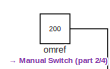
[diagram: root canvas - part 1/4, top left region]
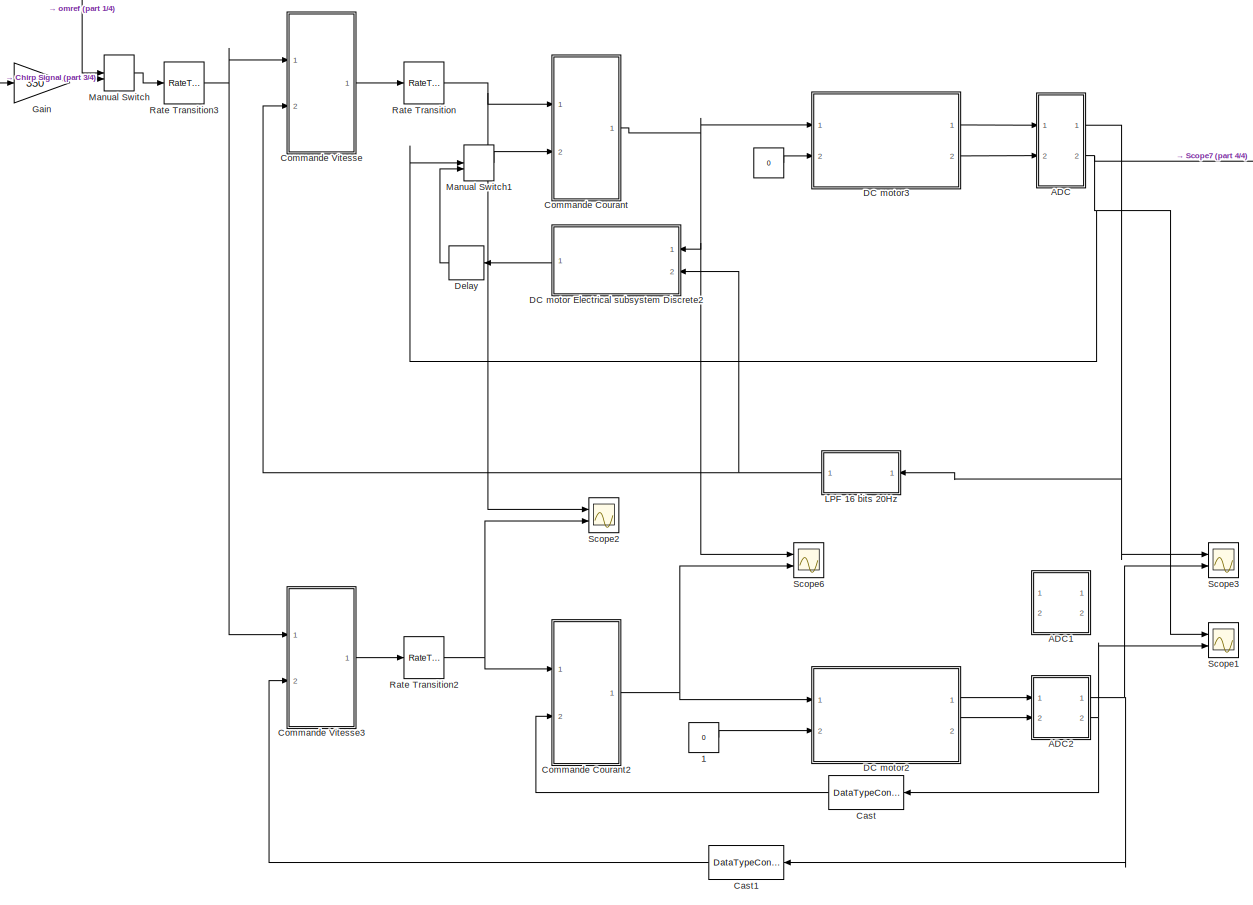
[diagram: root canvas - part 2/4, most of the canvas]
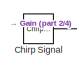
[diagram: root canvas - part 3/4, top left region]
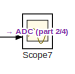
[diagram: root canvas - part 4/4, top right region]
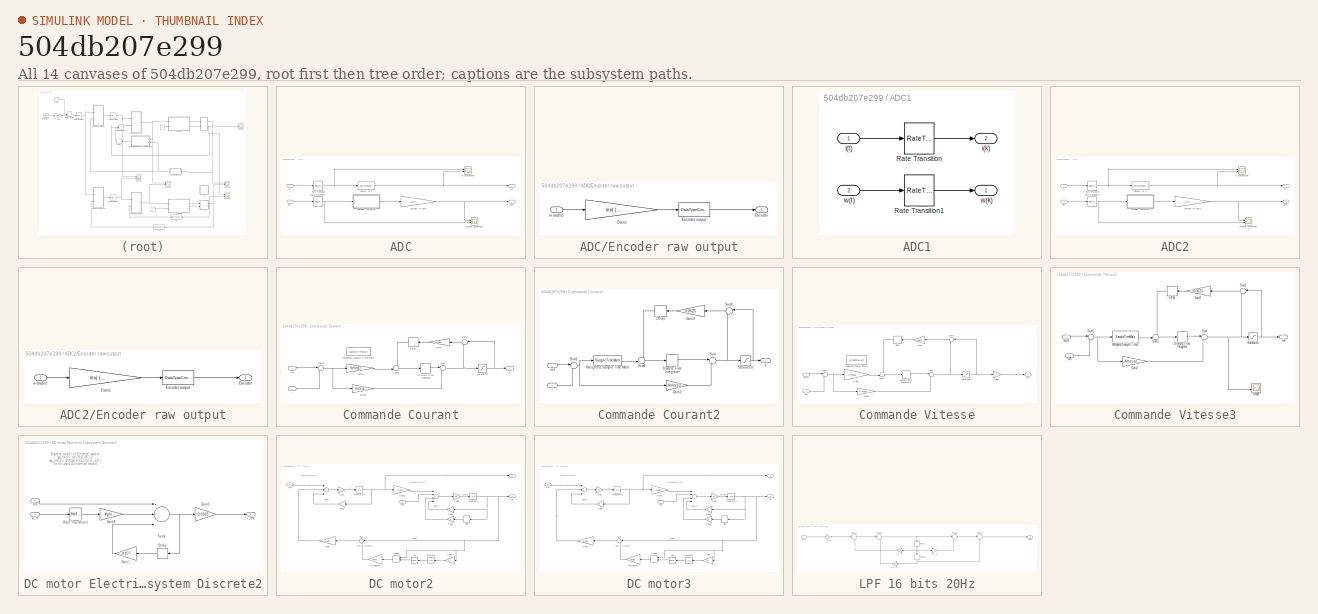
[diagram: thumbnail index - all 14 canvases of the model, root first then tree order]
MODEL slx_504db207e299
KIND model
CONFIG AbsTol = auto
CONFIG EnableMultiTasking = off
CONFIG FixedStep = auto
CONFIG MaxStep = 50e-6
CONFIG MinStep = auto
CONFIG PreLoadFcn = InitTPV0;
CONFIG RelTol = 1e-3
CONFIG SampleTimeConstraint = Unconstrained
CONFIG Solver = VariableStepAuto
CONFIG SolverName = VariableStepAuto
CONFIG StartTime = 0.0
CONFIG StopTime = 2
BLOCK [Constant]  
  OutDataTypeStr = Inherit: Inherit via back propagation
  Value = 0
BLOCK [Constant]  1
  Value = 0
BLOCK [SubSystem] ADC
  Ports = [2, 2]
  RequestExecContextInheritance = off
BLOCK [DataTypeConversion] ADC/Convert to A
  LockScale = on
  OutDataTypeStr = fixdt(1,16,4.4/32768,0)
  RndMeth = Floor
BLOCK [Scope] ADC/Encoder quantization
  Floating = off
  NumInputPorts = 2
  Ports = [2]
  ScopeSpecificationString = Simulink.scopes.TimeScopeBlockCfg('CurrentConfiguration', extmgr.ConfigurationSet(extmgr.Configuration('Core','General UI',true),extmgr.Configuration('Core','Source UI',true),extmgr.Configuration('Sources','WiredSimulink',true,'DataLoggingVariableName','ScopeData1'),extmgr.Configuration('Visuals','Time Domain',true,'SerializedDisplays',{struct('MinYLimReal','-471.48995','MaxYLimReal','457.62829','...<+1499ch>
BLOCK [SubSystem] ADC/Encoder raw output
  Ports = [1, 1]
  RequestExecContextInheritance = off
BLOCK [Outport] ADC/Encoder raw output/Encoder
  IconDisplay = Port number
BLOCK [DataTypeConversion] ADC/Encoder raw output/Encoder output
  LockScale = on
  OutDataTypeStr = int16
  RndMeth = Floor
BLOCK [Gain] ADC/Encoder raw output/Gain1
  Gain = inv(  (1/2)*(2*pi)/1000/.002  )
  LockScale = on
  OutDataTypeStr = double
  ParamDataTypeStr = Inherit: Inherit via internal rule
  SaturateOnIntegerOverflow = off
BLOCK [Inport] ADC/Encoder raw output/w (rad//s)
  IconDisplay = Port number
BLOCK [Gain] ADC/Encoder to rad//s
  Gain = (1/2)*(2*pi)/1000/.002
  LockScale = on
  OutDataTypeStr = fixdt(1,16)
  OutMax = Wmax
  ParamDataTypeStr = Inherit: Inherit via internal rule
  SaturateOnIntegerOverflow = off
BLOCK [Scope] ADC/Ia quantization
  Floating = off
  NumInputPorts = 2
  Ports = [2]
  ScopeSpecificationString = Simulink.scopes.TimeScopeBlockCfg('CurrentConfiguration', extmgr.ConfigurationSet(extmgr.Configuration('Core','General UI',true),extmgr.Configuration('Core','Source UI',true),extmgr.Configuration('Sources','WiredSimulink',true,'DataLoggingVariableName','ScopeData1'),extmgr.Configuration('Visuals','Time Domain',true,'SerializedDisplays',{struct('MinYLimReal','-1.00000','MaxYLimReal','1.00000','YLab...<+1499ch>
BLOCK [RateTransition] ADC/Rate Transition
  Deterministic = off
  OutPortSampleTime = .00005
BLOCK [RateTransition] ADC/Rate Transition1
  Deterministic = off
  OutPortSampleTime = .002
BLOCK [Outport] ADC/i(k)
  IconDisplay = Port number
  Port = 2
BLOCK [Inport] ADC/i(t)
  IconDisplay = Port number
BLOCK [Outport] ADC/w(k)
  IconDisplay = Port number
BLOCK [Inport] ADC/w(t)
  IconDisplay = Port number
  Port = 2
BLOCK [SubSystem] ADC1
  Ports = [2, 2]
  RequestExecContextInheritance = off
BLOCK [RateTransition] ADC1/Rate Transition
  Deterministic = off
  OutPortSampleTime = 50e-6
BLOCK [RateTransition] ADC1/Rate Transition1
  Deterministic = off
  OutPortSampleTime = .002
BLOCK [Outport] ADC1/i(k)
  IconDisplay = Port number
  Port = 2
BLOCK [Inport] ADC1/i(t)
  IconDisplay = Port number
BLOCK [Outport] ADC1/w(k)
  IconDisplay = Port number
BLOCK [Inport] ADC1/w(t)
  IconDisplay = Port number
  Port = 2
BLOCK [SubSystem] ADC2
  Ports = [2, 2]
  RequestExecContextInheritance = off
BLOCK [DataTypeConversion] ADC2/Convert to A
  LockScale = on
  OutDataTypeStr = fixdt(1,16,4.4/32768,0)
  RndMeth = Floor
BLOCK [Scope] ADC2/Encoder quantization
  Floating = off
  NumInputPorts = 2
  Ports = [2]
  ScopeSpecificationString = Simulink.scopes.TimeScopeBlockCfg('CurrentConfiguration', extmgr.ConfigurationSet(extmgr.Configuration('Core','General UI',true),extmgr.Configuration('Core','Source UI',true),extmgr.Configuration('Sources','WiredSimulink',true,'DataLoggingVariableName','ScopeData1'),extmgr.Configuration('Visuals','Time Domain',true,'SerializedDisplays',{struct('MinYLimReal','-471.48995','MaxYLimReal','457.62829','...<+1499ch>
BLOCK [SubSystem] ADC2/Encoder raw output
  Ports = [1, 1]
  RequestExecContextInheritance = off
BLOCK [Outport] ADC2/Encoder raw output/Encoder
  IconDisplay = Port number
BLOCK [DataTypeConversion] ADC2/Encoder raw output/Encoder output
  LockScale = on
  OutDataTypeStr = int16
  RndMeth = Floor
BLOCK [Gain] ADC2/Encoder raw output/Gain1
  Gain = inv(  (1/2)*(2*pi)/1000/.002  )
  LockScale = on
  OutDataTypeStr = double
  ParamDataTypeStr = Inherit: Inherit via internal rule
  SaturateOnIntegerOverflow = off
BLOCK [Inport] ADC2/Encoder raw output/w (rad//s)
  IconDisplay = Port number
BLOCK [Gain] ADC2/Encoder to rad//s
  Gain = (1/2)*(2*pi)/1000/.002
  LockScale = on
  OutDataTypeStr = fixdt(1,16)
  OutMax = Wmax
  ParamDataTypeStr = Inherit: Inherit via internal rule
  SaturateOnIntegerOverflow = off
BLOCK [Scope] ADC2/Ia quantization
  Floating = off
  NumInputPorts = 2
  Ports = [2]
  ScopeSpecificationString = Simulink.scopes.TimeScopeBlockCfg('CurrentConfiguration', extmgr.ConfigurationSet(extmgr.Configuration('Core','General UI',true),extmgr.Configuration('Core','Source UI',true),extmgr.Configuration('Sources','WiredSimulink',true,'DataLoggingVariableName','ScopeData1'),extmgr.Configuration('Visuals','Time Domain',true,'SerializedDisplays',{struct('MinYLimReal','-1.00000','MaxYLimReal','1.00000','YLab...<+1499ch>
BLOCK [RateTransition] ADC2/Rate Transition
  Deterministic = off
  OutPortSampleTime = .00005
BLOCK [RateTransition] ADC2/Rate Transition1
  Deterministic = off
  OutPortSampleTime = .002
BLOCK [Outport] ADC2/i(k)
  IconDisplay = Port number
  Port = 2
BLOCK [Inport] ADC2/i(t)
  IconDisplay = Port number
BLOCK [Outport] ADC2/w(k)
  IconDisplay = Port number
BLOCK [Inport] ADC2/w(t)
  IconDisplay = Port number
  Port = 2
BLOCK [DataTypeConversion] Cast
  OutDataTypeStr = double
  RndMeth = Floor
  SaturateOnIntegerOverflow = off
BLOCK [DataTypeConversion] Cast1
  OutDataTypeStr = double
  RndMeth = Floor
  SaturateOnIntegerOverflow = off
BLOCK [Reference] Chirp Signal  REF=simulink/Sources/Chirp Signal
  Ports = [0, 1]
  SourceBlock = simulink/Sources/Chirp Signal
  SourceProductBaseCode = SL
  SourceProductName = Simulink
  SourceType = chirp
BLOCK [SubSystem] Commande Courant
  Ports = [2, 1]
  RequestExecContextInheritance = off
BLOCK [Delay] Commande Courant/Delay
  DelayLength = 1
  InitialCondition = 0
  InputPortMap = u0
  Ports = [1, 1]
BLOCK [DiscreteIntegrator] Commande Courant/Discrete-Time Integrator
  ICPrevOutput = DiscIntNeverNeededParam
  ICPrevScaledInput = DiscIntNeverNeededParam
  InitialConditionSetting = Auto
  IntegratorMethod = Accumulation: Backward Euler
  OutDataTypeStr = fixdt(1,32)
  OutMax = Vmax*2
  Ports = [1, 1]
  SampleTime = .00005
  SaturateOnIntegerOverflow = on
BLOCK [Gain] Commande Courant/Gain
  Gain = 0.0625
  OutDataTypeStr = Inherit: Inherit via back propagation
  ParamDataTypeStr = Inherit: Inherit via internal rule
BLOCK [Gain] Commande Courant/Gain1
  Gain = Kelec(2)*Ts
  OutDataTypeStr = fixdt(1,16)
  OutMax = 2*Imax*Kelec(2)*Ts
  ParamDataTypeStr = Inherit: Inherit via internal rule
BLOCK [Gain] Commande Courant/Gain2
  Gain = -Kelec(1)
  OutDataTypeStr = fixdt(1,16)
  OutMax = Vmax
  ParamDataTypeStr = Inherit: Inherit via internal rule
BLOCK [Saturate] Commande Courant/Saturation
  InputPortMap = u0
  LowerLimit = -Vmax
  Ports = [1, 1]
  UpperLimit = Vmax
BLOCK [Sum] Commande Courant/Sum
  IconShape = round
  InputSameDT = off
  Inputs = |++
  OutDataTypeStr = fixdt(1,16)
  OutMax = Vmax*2
  Ports = [2, 1]
BLOCK [Sum] Commande Courant/Sum1
  IconShape = round
  InputSameDT = off
  Inputs = |+-
  OutDataTypeStr = fixdt(1,16,12)
  Ports = [2, 1]
BLOCK [Sum] Commande Courant/Sum2
  AccumDataTypeStr = Inherit: Same as first input
  IconShape = round
  InputSameDT = off
  Inputs = |-+
  Ports = [2, 1]
  SaturateOnIntegerOverflow = off
BLOCK [Sum] Commande Courant/Sum3
  IconShape = round
  Inputs = -+|
  OutDataTypeStr = Inherit: Same as accumulator
  Ports = [2, 1]
BLOCK [SampleTimeMath] Commande Courant/Weighted Sample Time Math
  TsampMathImp = Offline Scaling Adjustment
  TsampMathOp = *
  weightValue = Kelec(2)
BLOCK [Inport] Commande Courant/i
  IconDisplay = Port number
  Port = 2
BLOCK [Inport] Commande Courant/iref
  IconDisplay = Port number
BLOCK [Outport] Commande Courant/v
  IconDisplay = Port number
BLOCK [SubSystem] Commande Courant2
  Ports = [2, 1]
  RequestExecContextInheritance = off
BLOCK [Delay] Commande Courant2/Delay
  DelayLength = 1
  InitialCondition = 0
  InputPortMap = u0
  Ports = [1, 1]
BLOCK [DiscreteIntegrator] Commande Courant2/Discrete-Time Integrator
  ICPrevOutput = DiscIntNeverNeededParam
  ICPrevScaledInput = DiscIntNeverNeededParam
  InitialConditionSetting = Auto
  IntegratorMethod = Accumulation: Backward Euler
  Ports = [1, 1]
  SampleTime = -1
BLOCK [Gain] Commande Courant2/Gain2
  Gain = Kelec(1)
  OutDataTypeStr = Inherit: Inherit via internal rule
  ParamDataTypeStr = Inherit: Inherit via internal rule
  SaturateOnIntegerOverflow = off
BLOCK [Gain] Commande Courant2/Gain3
  Gain = 0.0625
  OutDataTypeStr = Inherit: Inherit via internal rule
  ParamDataTypeStr = Inherit: Inherit via internal rule
  SaturateOnIntegerOverflow = off
BLOCK [Saturate] Commande Courant2/Saturation
  InputPortMap = u0
  LowerLimit = -Vmax
  Ports = [1, 1]
  UpperLimit = Vmax
BLOCK [Sum] Commande Courant2/Sum
  IconShape = round
  InputSameDT = off
  Inputs = |+-
  OutDataTypeStr = Inherit: Inherit via internal rule
  Ports = [2, 1]
  SaturateOnIntegerOverflow = off
BLOCK [Sum] Commande Courant2/Sum1
  IconShape = round
  InputSameDT = off
  Inputs = |+-
  OutDataTypeStr = Inherit: Inherit via internal rule
  Ports = [2, 1]
  SaturateOnIntegerOverflow = off
BLOCK [Sum] Commande Courant2/Sum2
  AccumDataTypeStr = Inherit: Same as first input
  IconShape = round
  InputSameDT = off
  Inputs = |-+
  OutDataTypeStr = Inherit: Same as accumulator
  Ports = [2, 1]
  SaturateOnIntegerOverflow = off
BLOCK [Sum] Commande Courant2/Sum4
  IconShape = round
  InputSameDT = off
  Inputs = -+|
  OutDataTypeStr = Inherit: Inherit via internal rule
  Ports = [2, 1]
  SaturateOnIntegerOverflow = off
BLOCK [SampleTimeMath] Commande Courant2/Weighted Sample Time Math
  TsampMathImp = Offline Scaling Adjustment
  TsampMathOp = *
  weightValue = Kelec(2)
BLOCK [Inport] Commande Courant2/i
  IconDisplay = Port number
  Port = 2
BLOCK [Inport] Commande Courant2/iref
  IconDisplay = Port number
BLOCK [Outport] Commande Courant2/v
  IconDisplay = Port number
BLOCK [SubSystem] Commande Vitesse
  Ports = [2, 1]
  RequestExecContextInheritance = off
BLOCK [Delay] Commande Vitesse/Delay
  DelayLength = 1
  InitialCondition = 0
  InputPortMap = u0
  Ports = [1, 1]
BLOCK [DiscreteIntegrator] Commande Vitesse/Discrete-Time Integrator
  ICPrevOutput = DiscIntNeverNeededParam
  ICPrevScaledInput = DiscIntNeverNeededParam
  InitialConditionSetting = Auto
  IntegratorMethod = Accumulation: Backward Euler
  OutDataTypeStr = fixdt(1,32)
  OutMax = Imax*2
  OutMin = 0
  Ports = [1, 1]
  SampleTime = .002
  SaturateOnIntegerOverflow = on
BLOCK [Gain] Commande Vitesse/Gain
  Gain = 0.0625
  OutDataTypeStr = Inherit: Inherit via back propagation
  ParamDataTypeStr = Inherit: Inherit via internal rule
BLOCK [Gain] Commande Vitesse/Gain1
  Gain = -Kmeca(2)*0.002
  OutDataTypeStr = fixdt(1,16)
  OutMax = abs(Wmax * Kmeca(2) * 0.002)
  OutMin = 0
  ParamDataTypeStr = Inherit: Inherit via internal rule
  SaturateOnIntegerOverflow = off
BLOCK [Gain] Commande Vitesse/Gain2
  Gain = -Kmeca(1)
  OutDataTypeStr = fixdt(1,16)
  OutMax = Imax*2
  OutMin = -Imax*2
  ParamDataTypeStr = Inherit: Inherit via internal rule
BLOCK [Gain] Commande Vitesse/Gain3
  Gain = -1
  OutMax = Imax
  OutMin = -Imax
  ParamDataTypeStr = Inherit: Inherit via internal rule
BLOCK [Saturate] Commande Vitesse/Saturation
  InputPortMap = u0
  LowerLimit = -Imax
  Ports = [1, 1]
  UpperLimit = Imax
BLOCK [Sum] Commande Vitesse/Sum
  IconShape = round
  InputSameDT = off
  Inputs = |++
  OutDataTypeStr = fixdt(1,16)
  OutMax = Imax*2
  OutMin = -Imax
  Ports = [2, 1]
BLOCK [Sum] Commande Vitesse/Sum1
  IconShape = round
  InputSameDT = off
  Inputs = |+-
  OutDataTypeStr = fixdt(1,16)
  OutMax = Wmax*2
  OutMin = -Wmax*2
  Ports = [2, 1]
  SaturateOnIntegerOverflow = off
BLOCK [Sum] Commande Vitesse/Sum2
  AccumDataTypeStr = Inherit: Same as first input
  IconShape = round
  InputSameDT = off
  Inputs = |-+
  OutDataTypeStr = Inherit: Same as accumulator
  Ports = [2, 1]
  SaturateOnIntegerOverflow = off
BLOCK [Sum] Commande Vitesse/Sum3
  AccumDataTypeStr = Inherit: Same as first input
  IconShape = round
  Inputs = --|
  OutDataTypeStr = Inherit: Same as accumulator
  Ports = [2, 1]
BLOCK [SampleTimeMath] Commande Vitesse/Weighted Sample Time1
  TsampMathImp = Offline Scaling Adjustment
  TsampMathOp = *
  weightValue = -Kmeca(2)
BLOCK [Outport] Commande Vitesse/iref
  IconDisplay = Port number
BLOCK [Inport] Commande Vitesse/om
  IconDisplay = Port number
  Port = 2
BLOCK [Inport] Commande Vitesse/omref
  IconDisplay = Port number
  OutDataTypeStr = fixdt(1,16)
  OutMax = Wmax
BLOCK [SubSystem] Commande Vitesse3
  Ports = [2, 1]
  RequestExecContextInheritance = off
BLOCK [Delay] Commande Vitesse3/Delay
  DelayLength = 1
  InitialCondition = 0
  InputPortMap = u0
  Ports = [1, 1]
BLOCK [DiscreteIntegrator] Commande Vitesse3/Discrete-Time Integrator
  ICPrevOutput = DiscIntNeverNeededParam
  ICPrevScaledInput = DiscIntNeverNeededParam
  InitialConditionSetting = Auto
  IntegratorMethod = Accumulation: Backward Euler
  Ports = [1, 1]
  SampleTime = -1
BLOCK [Gain] Commande Vitesse3/Gain2
  Gain = -Kmeca(1)
  OutDataTypeStr = Inherit: Inherit via internal rule
  ParamDataTypeStr = Inherit: Inherit via internal rule
  SaturateOnIntegerOverflow = off
BLOCK [Gain] Commande Vitesse3/Gain3
  Gain = 0.0625
  OutDataTypeStr = Inherit: Inherit via back propagation
  ParamDataTypeStr = Inherit: Inherit via internal rule
  SaturateOnIntegerOverflow = off
BLOCK [Saturate] Commande Vitesse3/Saturation
  InputPortMap = u0
  LowerLimit = -Imax
  Ports = [1, 1]
  UpperLimit = Imax
BLOCK [Scope] Commande Vitesse3/Scope
  Floating = off
  NumInputPorts = 2
  Ports = [2]
  ScopeSpecificationString = Simulink.scopes.TimeScopeBlockCfg('CurrentConfiguration', extmgr.ConfigurationSet(extmgr.Configuration('Core','General UI',true),extmgr.Configuration('Core','Source UI',true),extmgr.Configuration('Sources','WiredSimulink',true,'DataLoggingVariableName','ScopeData4'),extmgr.Configuration('Visuals','Time Domain',true,'SerializedDisplays',{struct('MinYLimReal','-1.10037','MaxYLimReal','9.90335','YLab...<+1473ch>
BLOCK [Sum] Commande Vitesse3/Sum
  IconShape = round
  InputSameDT = off
  Inputs = |--
  OutDataTypeStr = Inherit: Inherit via internal rule
  Ports = [2, 1]
  SaturateOnIntegerOverflow = off
BLOCK [Sum] Commande Vitesse3/Sum1
  IconShape = round
  InputSameDT = off
  Inputs = |+-
  OutDataTypeStr = Inherit: Inherit via internal rule
  Ports = [2, 1]
  SaturateOnIntegerOverflow = off
BLOCK [Sum] Commande Vitesse3/Sum2
  AccumDataTypeStr = Inherit: Same as first input
  IconShape = round
  InputSameDT = off
  Inputs = |-+
  OutDataTypeStr = Inherit: Same as accumulator
  Ports = [2, 1]
  SaturateOnIntegerOverflow = off
BLOCK [Sum] Commande Vitesse3/Sum3
  IconShape = round
  InputSameDT = off
  Inputs = ++|
  OutDataTypeStr = Inherit: Inherit via internal rule
  Ports = [2, 1]
  SaturateOnIntegerOverflow = off
BLOCK [SampleTimeMath] Commande Vitesse3/Weighted Sample Time1
  TsampMathOp = *
  weightValue = Kmeca(2)
BLOCK [Outport] Commande Vitesse3/iref
  IconDisplay = Port number
BLOCK [Inport] Commande Vitesse3/om
  IconDisplay = Port number
  Port = 2
BLOCK [Inport] Commande Vitesse3/omref
  IconDisplay = Port number
BLOCK [SubSystem] DC motor Electrical subsystem Discrete2
  Ports = [2, 1]
  RequestExecContextInheritance = off
BLOCK [Delay] DC motor Electrical subsystem Discrete2/Delay
  DelayLength = 1
  InitialCondition = 0
  InputPortMap = u0
  Ports = [1, 1]
  SampleTime = 50e-6
BLOCK [Gain] DC motor Electrical subsystem Discrete2/Gain1
  Gain = -0.977
  OutDataTypeStr = fixdt(1,32,9)
  ParamDataTypeStr = Inherit: Inherit via internal rule
  SaturateOnIntegerOverflow = off
BLOCK [Gain] DC motor Electrical subsystem Discrete2/Gain3
  Gain = 0.0183
  OutDataTypeStr = fixdt(1,16)
  OutMax = 8.8
  OutMin = [-8.8]
  ParamDataTypeStr = Inherit: Inherit via internal rule
  SaturateOnIntegerOverflow = off
BLOCK [Gain] DC motor Electrical subsystem Discrete2/Gain4
  Gain = Kphi
  OutDataTypeStr = Inherit: Inherit via back propagation
  ParamDataTypeStr = Inherit: Inherit via internal rule
  SaturateOnIntegerOverflow = off
BLOCK [Outport] DC motor Electrical subsystem Discrete2/I_est
  IconDisplay = Port number
BLOCK [RateTransition] DC motor Electrical subsystem Discrete2/Rate Transition1
  Deterministic = off
  OutPortSampleTime = 50e-6
BLOCK [Sum] DC motor Electrical subsystem Discrete2/Sum2
  InputSameDT = off
  Inputs = +--
  OutDataTypeStr = fixdt(1,16,6)
  Ports = [3, 1]
BLOCK [Inport] DC motor Electrical subsystem Discrete2/Vin
  IconDisplay = Port number
BLOCK [Inport] DC motor Electrical subsystem Discrete2/w_in
  IconDisplay = Port number
  Port = 2
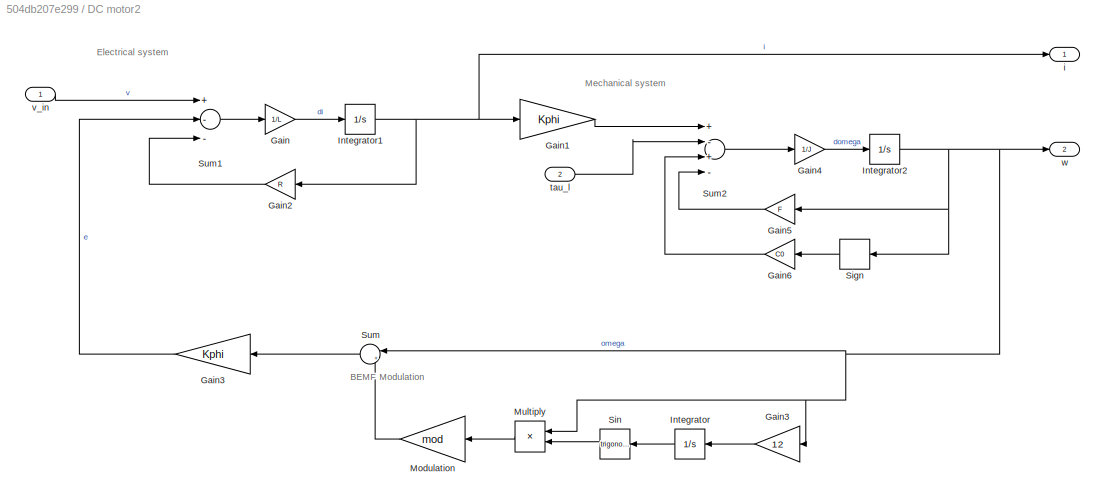
BLOCK [SubSystem] DC motor2
  Ports = [2, 2]
  RequestExecContextInheritance = off
BLOCK [Gain] DC motor2/Gain
  Gain = 1/L
  OutDataTypeStr = Inherit: Inherit via internal rule
  ParamDataTypeStr = Inherit: Inherit via internal rule
  SaturateOnIntegerOverflow = off
BLOCK [Gain] DC motor2/Gain1
  Gain = Kphi
  OutDataTypeStr = Inherit: Inherit via internal rule
  ParamDataTypeStr = Inherit: Inherit via internal rule
  SaturateOnIntegerOverflow = off
BLOCK [Gain] DC motor2/Gain2
  Gain = R
  OutDataTypeStr = Inherit: Inherit via internal rule
  ParamDataTypeStr = Inherit: Inherit via internal rule
  SaturateOnIntegerOverflow = off
BLOCK [Gain] DC motor2/Gain3
  Gain = 12
  OutDataTypeStr = Inherit: Inherit via internal rule
  ParamDataTypeStr = Inherit: Inherit via internal rule
  SaturateOnIntegerOverflow = off
BLOCK [Gain] DC motor2/Gain3  
  Gain = Kphi
  OutDataTypeStr = Inherit: Inherit via internal rule
  ParamDataTypeStr = Inherit: Inherit via internal rule
  SaturateOnIntegerOverflow = off
BLOCK [Gain] DC motor2/Gain4
  Gain = 1/J
  OutDataTypeStr = Inherit: Inherit via internal rule
  ParamDataTypeStr = Inherit: Inherit via internal rule
  SaturateOnIntegerOverflow = off
BLOCK [Gain] DC motor2/Gain5
  Gain = F
  OutDataTypeStr = Inherit: Inherit via internal rule
  ParamDataTypeStr = Inherit: Inherit via internal rule
  SaturateOnIntegerOverflow = off
BLOCK [Gain] DC motor2/Gain6
  Gain = C0
  OutDataTypeStr = Inherit: Inherit via internal rule
  ParamDataTypeStr = Inherit: Inherit via internal rule
  SaturateOnIntegerOverflow = off
BLOCK [Integrator] DC motor2/Integrator
  Ports = [1, 1]
  WrapState = on
BLOCK [Integrator] DC motor2/Integrator1
  Ports = [1, 1]
BLOCK [Integrator] DC motor2/Integrator2
  Ports = [1, 1]
BLOCK [Gain] DC motor2/Modulation
  Gain = mod
  OutDataTypeStr = Inherit: Inherit via internal rule
  ParamDataTypeStr = Inherit: Inherit via internal rule
  SaturateOnIntegerOverflow = off
BLOCK [Product] DC motor2/Multiply
  InputSameDT = off
  OutDataTypeStr = Inherit: Inherit via internal rule
  Ports = [2, 1]
  RndMeth = Floor
  SaturateOnIntegerOverflow = off
BLOCK [Signum] DC motor2/Sign
BLOCK [Trigonometry] DC motor2/Sin
  Ports = [1, 1]
BLOCK [Sum] DC motor2/Sum
  IconShape = round
  InputSameDT = off
  Inputs = |++
  OutDataTypeStr = Inherit: Inherit via internal rule
  Ports = [2, 1]
  SaturateOnIntegerOverflow = off
BLOCK [Sum] DC motor2/Sum1
  InputSameDT = off
  Inputs = +--
  OutDataTypeStr = Inherit: Inherit via internal rule
  Ports = [3, 1]
  SaturateOnIntegerOverflow = off
BLOCK [Sum] DC motor2/Sum2
  InputSameDT = off
  Inputs = +-+-
  OutDataTypeStr = Inherit: Inherit via internal rule
  Ports = [4, 1]
  SaturateOnIntegerOverflow = off
BLOCK [Outport] DC motor2/i
  IconDisplay = Port number
BLOCK [Inport] DC motor2/tau_l
  IconDisplay = Port number
  Port = 2
BLOCK [Inport] DC motor2/v_in
  IconDisplay = Port number
  SampleTime = 0
BLOCK [Outport] DC motor2/w
  IconDisplay = Port number
  Port = 2
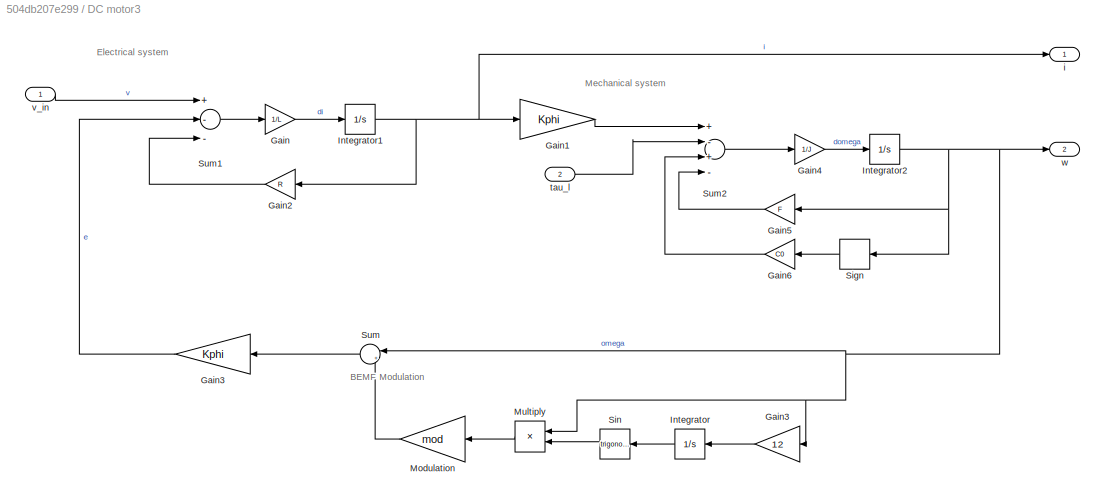
BLOCK [SubSystem] DC motor3
  Ports = [2, 2]
  RequestExecContextInheritance = off
BLOCK [Gain] DC motor3/Gain
  Gain = 1/L
  OutDataTypeStr = Inherit: Inherit via internal rule
  ParamDataTypeStr = Inherit: Inherit via internal rule
  SaturateOnIntegerOverflow = off
BLOCK [Gain] DC motor3/Gain1
  Gain = Kphi
  OutDataTypeStr = Inherit: Inherit via internal rule
  ParamDataTypeStr = Inherit: Inherit via internal rule
  SaturateOnIntegerOverflow = off
BLOCK [Gain] DC motor3/Gain2
  Gain = R
  OutDataTypeStr = Inherit: Inherit via internal rule
  ParamDataTypeStr = Inherit: Inherit via internal rule
  SaturateOnIntegerOverflow = off
BLOCK [Gain] DC motor3/Gain3
  Gain = 12
  OutDataTypeStr = Inherit: Inherit via internal rule
  ParamDataTypeStr = Inherit: Inherit via internal rule
  SaturateOnIntegerOverflow = off
BLOCK [Gain] DC motor3/Gain3  
  Gain = Kphi
  OutDataTypeStr = Inherit: Inherit via internal rule
  ParamDataTypeStr = Inherit: Inherit via internal rule
  SaturateOnIntegerOverflow = off
BLOCK [Gain] DC motor3/Gain4
  Gain = 1/J
  OutDataTypeStr = Inherit: Inherit via internal rule
  ParamDataTypeStr = Inherit: Inherit via internal rule
  SaturateOnIntegerOverflow = off
BLOCK [Gain] DC motor3/Gain5
  Gain = F
  OutDataTypeStr = Inherit: Inherit via internal rule
  ParamDataTypeStr = Inherit: Inherit via internal rule
  SaturateOnIntegerOverflow = off
BLOCK [Gain] DC motor3/Gain6
  Gain = C0
  OutDataTypeStr = Inherit: Inherit via internal rule
  ParamDataTypeStr = Inherit: Inherit via internal rule
  SaturateOnIntegerOverflow = off
BLOCK [Integrator] DC motor3/Integrator
  Ports = [1, 1]
  WrapState = on
BLOCK [Integrator] DC motor3/Integrator1
  Ports = [1, 1]
BLOCK [Integrator] DC motor3/Integrator2
  Ports = [1, 1]
BLOCK [Gain] DC motor3/Modulation
  Gain = mod
  OutDataTypeStr = Inherit: Inherit via internal rule
  ParamDataTypeStr = Inherit: Inherit via internal rule
  SaturateOnIntegerOverflow = off
BLOCK [Product] DC motor3/Multiply
  InputSameDT = off
  OutDataTypeStr = Inherit: Inherit via internal rule
  Ports = [2, 1]
  RndMeth = Floor
  SaturateOnIntegerOverflow = off
BLOCK [Signum] DC motor3/Sign
BLOCK [Trigonometry] DC motor3/Sin
  Ports = [1, 1]
BLOCK [Sum] DC motor3/Sum
  IconShape = round
  InputSameDT = off
  Inputs = |++
  OutDataTypeStr = Inherit: Inherit via internal rule
  Ports = [2, 1]
  SaturateOnIntegerOverflow = off
BLOCK [Sum] DC motor3/Sum1
  InputSameDT = off
  Inputs = +--
  OutDataTypeStr = Inherit: Inherit via internal rule
  Ports = [3, 1]
  SaturateOnIntegerOverflow = off
BLOCK [Sum] DC motor3/Sum2
  InputSameDT = off
  Inputs = +-+-
  OutDataTypeStr = Inherit: Inherit via internal rule
  Ports = [4, 1]
  SaturateOnIntegerOverflow = off
BLOCK [Outport] DC motor3/i
  IconDisplay = Port number
BLOCK [Inport] DC motor3/tau_l
  IconDisplay = Port number
  Port = 2
BLOCK [Inport] DC motor3/v_in
  IconDisplay = Port number
  SampleTime = 0
BLOCK [Outport] DC motor3/w
  IconDisplay = Port number
  Port = 2
BLOCK [Delay] Delay
  DelayLength = 1
  InitialCondition = 0
  InputPortMap = u0
  Ports = [1, 1]
BLOCK [Gain] Gain
  Gain = 350
  OutDataTypeStr = Inherit: Inherit via back propagation
  ParamDataTypeStr = Inherit: Inherit via internal rule
  SaturateOnIntegerOverflow = off
BLOCK [SubSystem] LPF 16 bits 20Hz
  ErrorFcn = dspFilterRealizedInBasicElemsAlgLoopErrFcnCallback
  Ports = [1, 1]
  RequestExecContextInheritance = off
  Tag = FilterWizardSubSystem
  UserDataPersistent = on
BLOCK [Delay] LPF 16 bits 20Hz/Delay11
  DelayLength = 1
  InitialCondition = 0
  InputPortMap = u0
  Ports = [1, 1]
BLOCK [Delay] LPF 16 bits 20Hz/Delay21
  DelayLength = 1
  InitialCondition = 0
  InputPortMap = u0
  Ports = [1, 1]
BLOCK [Inport] LPF 16 bits 20Hz/Input
  IconDisplay = Port number
BLOCK [Outport] LPF 16 bits 20Hz/Output
  IconDisplay = Port number
BLOCK [Sum] LPF 16 bits 20Hz/SumA21
  IconShape = round
  InputSameDT = off
  Inputs = |+-
  OutDataTypeStr = fixdt(1,16,6)
  Ports = [2, 1]
  RndMeth = Nearest
BLOCK [Sum] LPF 16 bits 20Hz/SumA31
  AccumDataTypeStr = Inherit: Same as first input
  IconShape = round
  InputSameDT = off
  Inputs = |+-
  OutDataTypeStr = fixdt(1,16,6)
  Ports = [2, 1]
  RndMeth = Nearest
BLOCK [Sum] LPF 16 bits 20Hz/SumB21
  IconShape = round
  InputSameDT = off
  Inputs = |++
  OutDataTypeStr = fixdt(1,16,5)
  Ports = [2, 1]
  RndMeth = Nearest
BLOCK [Sum] LPF 16 bits 20Hz/SumB31
  IconShape = round
  InputSameDT = off
  Inputs = |++
  OutDataTypeStr = fixdt(1,16,4)
  Ports = [2, 1]
  RndMeth = Nearest
BLOCK [Gain] LPF 16 bits 20Hz/a(2)(1)
  Gain = -1.64745998107697678
  OutDataTypeStr = fixdt(1,16,6)
  ParamDataTypeStr = fixdt(1,16,14)
  RndMeth = Nearest
BLOCK [Gain] LPF 16 bits 20Hz/a(3)(1)
  Gain = 0.700896781188402596
  OutDataTypeStr = fixdt(1,16,7)
  ParamDataTypeStr = fixdt(0,16,16)
  RndMeth = Nearest
BLOCK [Gain] LPF 16 bits 20Hz/b(2)(1)
  Gain = 2
  OutDataTypeStr = fixdt(1,16,5)
  ParamDataTypeStr = fixdt(0,16,14)
  RndMeth = Nearest
BLOCK [Gain] LPF 16 bits 20Hz/s(1)
  Gain = 0.0133592000278565052
  OutDataTypeStr = fixdt(1,16,11)
  ParamDataTypeStr = fixdt(0,16,22)
  RndMeth = Nearest
BLOCK [ManualSwitch] Manual Switch
BLOCK [ManualSwitch] Manual Switch1
  CurrentSetting = 0
BLOCK [RateTransition] Rate Transition
  Deterministic = off
  OutPortSampleTime = 50e-6
BLOCK [RateTransition] Rate Transition2
  Deterministic = off
  OutPortSampleTime = 50e-6
BLOCK [RateTransition] Rate Transition3
  Deterministic = off
  OutPortSampleTime = .002
BLOCK [Scope] Scope1
  Floating = off
  NumInputPorts = 2
  Ports = [2]
  ScopeSpecificationString = Simulink.scopes.TimeScopeBlockCfg('CurrentConfiguration', extmgr.ConfigurationSet(extmgr.Configuration('Core','General UI',true),extmgr.Configuration('Core','Source UI',true),extmgr.Configuration('Sources','WiredSimulink',true,'DataLoggingVariableName','ScopeData1'),extmgr.Configuration('Visuals','Time Domain',true,'SerializedDisplays',{struct('MinYLimReal','-0.54998','MaxYLimReal','4.94985','YLab...<+1508ch>
BLOCK [Scope] Scope2
  Floating = off
  NumInputPorts = 2
  Ports = [2]
  ScopeSpecificationString = Simulink.scopes.TimeScopeBlockCfg('CurrentConfiguration', extmgr.ConfigurationSet(extmgr.Configuration('Core','General UI',true),extmgr.Configuration('Core','Source UI',true),extmgr.Configuration('Sources','WiredSimulink',true,'DataLoggingVariableName','ScopeData2'),extmgr.Configuration('Visuals','Time Domain',true,'SerializedDisplays',{struct('MinYLimReal','-0.55','MaxYLimReal','4.95','YLabelReal...<+1510ch>
BLOCK [Scope] Scope3
  Floating = off
  NumInputPorts = 2
  Ports = [2]
  ScopeSpecificationString = Simulink.scopes.TimeScopeBlockCfg('CurrentConfiguration', extmgr.ConfigurationSet(extmgr.Configuration('Core','General UI',true),extmgr.Configuration('Core','Source UI',true),extmgr.Configuration('Sources','WiredSimulink',true,'DataLoggingVariableName','ScopeData3'),extmgr.Configuration('Visuals','Time Domain',true,'SerializedDisplays',{struct('MinYLimReal','-26.89844','MaxYLimReal','242.08594','Y...<+1518ch>
BLOCK [Scope] Scope6
  Floating = off
  NumInputPorts = 2
  Ports = [2]
  ScopeSpecificationString = Simulink.scopes.TimeScopeBlockCfg('CurrentConfiguration', extmgr.ConfigurationSet(extmgr.Configuration('Core','General UI',true),extmgr.Configuration('Core','Source UI',true),extmgr.Configuration('Sources','WiredSimulink',true,'DataLoggingVariableName','ScopeData1'),extmgr.Configuration('Visuals','Time Domain',true,'SerializedDisplays',{struct('MinYLimReal','-2.28364','MaxYLimReal','20.55273','YLa...<+1534ch>
BLOCK [Scope] Scope7
  Floating = off
  NumInputPorts = 2
  Ports = [2]
  ScopeSpecificationString = Simulink.scopes.TimeScopeBlockCfg('CurrentConfiguration', extmgr.ConfigurationSet(extmgr.Configuration('Core','General UI',true),extmgr.Configuration('Core','Source UI',true),extmgr.Configuration('Sources','WiredSimulink',true,'DataLoggingVariableName','ScopeData2'),extmgr.Configuration('Visuals','Time Domain',true,'SerializedDisplays',{struct('MinYLimReal','-0.54998','MaxYLimReal','4.94985','YLab...<+1511ch>
BLOCK [Constant] omref
  OutDataTypeStr = Inherit: Inherit via back propagation
  Value = 200
ANNOTATION DC motor Electrical subsystem Discrete2: Discrete model of Electrical system: sys_elec = tf(1/R,[L/R 1]); sys_elecz = c2d(sys_elec,50e-6,'zoh') To be used as internal model
ANNOTATION DC motor2: BEMF Modulation
ANNOTATION DC motor2: Electrical system
ANNOTATION DC motor2: Mechanical system
ANNOTATION DC motor3: BEMF Modulation
ANNOTATION DC motor3: Electrical system
ANNOTATION DC motor3: Mechanical system
LINE  1:1 -> DC motor2:2
LINE  :1 -> DC motor3:2
NET ADC/Convert to A:1 -> ADC/Ia quantization:2, ADC/i(k):1
LINE ADC/Encoder raw output/Encoder output:1 -> ADC/Encoder raw output/Encoder:1
LINE ADC/Encoder raw output/Gain1:1 -> ADC/Encoder raw output/Encoder output:1
LINE ADC/Encoder raw output/w (rad//s):1 -> ADC/Encoder raw output/Gain1:1
LINE ADC/Encoder raw output:1 -> ADC/Encoder to rad//s:1
NET ADC/Encoder to rad//s:1 -> ADC/Encoder quantization:1, ADC/w(k):1
NET ADC/Rate Transition1:1 -> ADC/Encoder quantization:2, ADC/Encoder raw output:1
NET ADC/Rate Transition:1 -> ADC/Convert to A:1, ADC/Ia quantization:1
LINE ADC/i(t):1 -> ADC/Rate Transition:1
LINE ADC/w(t):1 -> ADC/Rate Transition1:1
LINE ADC1/Rate Transition1:1 -> ADC1/w(k):1
LINE ADC1/Rate Transition:1 -> ADC1/i(k):1
LINE ADC1/i(t):1 -> ADC1/Rate Transition:1
LINE ADC1/w(t):1 -> ADC1/Rate Transition1:1
NET ADC2/Convert to A:1 -> ADC2/Ia quantization:2, ADC2/i(k):1
LINE ADC2/Encoder raw output/Encoder output:1 -> ADC2/Encoder raw output/Encoder:1
LINE ADC2/Encoder raw output/Gain1:1 -> ADC2/Encoder raw output/Encoder output:1
LINE ADC2/Encoder raw output/w (rad//s):1 -> ADC2/Encoder raw output/Gain1:1
LINE ADC2/Encoder raw output:1 -> ADC2/Encoder to rad//s:1
NET ADC2/Encoder to rad//s:1 -> ADC2/Encoder quantization:1, ADC2/w(k):1
NET ADC2/Rate Transition1:1 -> ADC2/Encoder quantization:2, ADC2/Encoder raw output:1
NET ADC2/Rate Transition:1 -> ADC2/Convert to A:1, ADC2/Ia quantization:1
LINE ADC2/i(t):1 -> ADC2/Rate Transition:1
LINE ADC2/w(t):1 -> ADC2/Rate Transition1:1
NET ADC2:1 -> Cast1:1, Scope3:2
NET ADC2:2 -> Cast:1, Scope1:2
NET ADC:1 -> LPF 16 bits 20Hz:1, Scope3:1
NET ADC:2 -> Manual Switch1:1, Scope1:1, Scope7:2
LINE Cast1:1 -> Commande Vitesse3:2
LINE Cast:1 -> Commande Courant2:2
LINE Chirp Signal:1 -> Gain:1
LINE Commande Courant/Delay:1 -> Commande Courant/Sum3:1
LINE Commande Courant/Discrete-Time Integrator:1 -> Commande Courant/Sum:1
LINE Commande Courant/Gain1:1 -> Commande Courant/Sum3:2
LINE Commande Courant/Gain2:1 -> Commande Courant/Sum:2
LINE Commande Courant/Gain:1 -> Commande Courant/Delay:1
NET Commande Courant/Saturation:1 -> Commande Courant/Sum2:1, Commande Courant/v:1
NET Commande Courant/Sum1:1 -> Commande Courant/Gain1:1, Commande Courant/Gain2:1
LINE Commande Courant/Sum2:1 -> Commande Courant/Gain:1
LINE Commande Courant/Sum3:1 -> Commande Courant/Discrete-Time Integrator:1
NET Commande Courant/Sum:1 -> Commande Courant/Saturation:1, Commande Courant/Sum2:2
LINE Commande Courant/i:1 -> Commande Courant/Sum1:2
LINE Commande Courant/iref:1 -> Commande Courant/Sum1:1
LINE Commande Courant2/Delay:1 -> Commande Courant2/Sum4:1
LINE Commande Courant2/Discrete-Time Integrator:1 -> Commande Courant2/Sum:1
LINE Commande Courant2/Gain2:1 -> Commande Courant2/Sum:2
LINE Commande Courant2/Gain3:1 -> Commande Courant2/Delay:1
NET Commande Courant2/Saturation:1 -> Commande Courant2/Sum2:1, Commande Courant2/v:1
NET Commande Courant2/Sum1:1 -> Commande Courant2/Gain2:1, Commande Courant2/Weighted Sample Time Math:1
LINE Commande Courant2/Sum2:1 -> Commande Courant2/Gain3:1
LINE Commande Courant2/Sum4:1 -> Commande Courant2/Discrete-Time Integrator:1
NET Commande Courant2/Sum:1 -> Commande Courant2/Saturation:1, Commande Courant2/Sum2:2
LINE Commande Courant2/Weighted Sample Time Math:1 -> Commande Courant2/Sum4:2
LINE Commande Courant2/i:1 -> Commande Courant2/Sum1:2
LINE Commande Courant2/iref:1 -> Commande Courant2/Sum1:1
NET Commande Courant2:1 -> DC motor2:1, Scope6:2
NET Commande Courant:1 -> DC motor Electrical subsystem Discrete2:1, DC motor3:1, Scope6:1
LINE Commande Vitesse/Delay:1 -> Commande Vitesse/Sum3:1
LINE Commande Vitesse/Discrete-Time Integrator:1 -> Commande Vitesse/Sum:1
LINE Commande Vitesse/Gain1:1 -> Commande Vitesse/Sum3:2
LINE Commande Vitesse/Gain2:1 -> Commande Vitesse/Sum:2
LINE Commande Vitesse/Gain3:1 -> Commande Vitesse/iref:1
LINE Commande Vitesse/Gain:1 -> Commande Vitesse/Delay:1
NET Commande Vitesse/Saturation:1 -> Commande Vitesse/Gain3:1, Commande Vitesse/Sum2:1
NET Commande Vitesse/Sum1:1 -> Commande Vitesse/Gain1:1, Commande Vitesse/Gain2:1
LINE Commande Vitesse/Sum2:1 -> Commande Vitesse/Gain:1
LINE Commande Vitesse/Sum3:1 -> Commande Vitesse/Discrete-Time Integrator:1
NET Commande Vitesse/Sum:1 -> Commande Vitesse/Saturation:1, Commande Vitesse/Sum2:2
LINE Commande Vitesse/om:1 -> Commande Vitesse/Sum1:2
LINE Commande Vitesse/omref:1 -> Commande Vitesse/Sum1:1
LINE Commande Vitesse3/Delay:1 -> Commande Vitesse3/Sum3:1
LINE Commande Vitesse3/Discrete-Time Integrator:1 -> Commande Vitesse3/Sum:1
LINE Commande Vitesse3/Gain2:1 -> Commande Vitesse3/Sum:2
LINE Commande Vitesse3/Gain3:1 -> Commande Vitesse3/Delay:1
NET Commande Vitesse3/Saturation:1 -> Commande Vitesse3/Sum2:1, Commande Vitesse3/iref:1
NET Commande Vitesse3/Sum1:1 -> Commande Vitesse3/Gain2:1, Commande Vitesse3/Weighted Sample Time1:1
LINE Commande Vitesse3/Sum2:1 -> Commande Vitesse3/Gain3:1
LINE Commande Vitesse3/Sum3:1 -> Commande Vitesse3/Discrete-Time Integrator:1
NET Commande Vitesse3/Sum:1 -> Commande Vitesse3/Saturation:1, Commande Vitesse3/Scope:2, Commande Vitesse3/Sum2:2
LINE Commande Vitesse3/Weighted Sample Time1:1 -> Commande Vitesse3/Sum3:2
LINE Commande Vitesse3/om:1 -> Commande Vitesse3/Sum1:2
LINE Commande Vitesse3/omref:1 -> Commande Vitesse3/Sum1:1
LINE Commande Vitesse3:1 -> Rate Transition2:1
LINE Commande Vitesse:1 -> Rate Transition:1
LINE DC motor Electrical subsystem Discrete2/Delay:1 -> DC motor Electrical subsystem Discrete2/Gain1:1
LINE DC motor Electrical subsystem Discrete2/Gain1:1 -> DC motor Electrical subsystem Discrete2/Sum2:3
LINE DC motor Electrical subsystem Discrete2/Gain3:1 -> DC motor Electrical subsystem Discrete2/I_est:1
LINE DC motor Electrical subsystem Discrete2/Gain4:1 -> DC motor Electrical subsystem Discrete2/Sum2:2
LINE DC motor Electrical subsystem Discrete2/Rate Transition1:1 -> DC motor Electrical subsystem Discrete2/Gain4:1
NET DC motor Electrical subsystem Discrete2/Sum2:1 -> DC motor Electrical subsystem Discrete2/Delay:1, DC motor Electrical subsystem Discrete2/Gain3:1
LINE DC motor Electrical subsystem Discrete2/Vin:1 -> DC motor Electrical subsystem Discrete2/Sum2:1
LINE DC motor Electrical subsystem Discrete2/w_in:1 -> DC motor Electrical subsystem Discrete2/Rate Transition1:1
LINE DC motor Electrical subsystem Discrete2:1 -> Delay:1
LINE DC motor2/Gain1:1 -> DC motor2/Sum2:1
LINE DC motor2/Gain2:1 -> DC motor2/Sum1:3
LINE DC motor2/Gain3  :1 -> DC motor2/Sum1:2
LINE DC motor2/Gain3:1 -> DC motor2/Integrator:1
LINE DC motor2/Gain4:1 -> DC motor2/Integrator2:1
LINE DC motor2/Gain5:1 -> DC motor2/Sum2:4
LINE DC motor2/Gain6:1 -> DC motor2/Sum2:3
LINE DC motor2/Gain:1 -> DC motor2/Integrator1:1
NET DC motor2/Integrator1:1 -> DC motor2/Gain1:1, DC motor2/Gain2:1, DC motor2/i:1
NET DC motor2/Integrator2:1 -> DC motor2/Gain3:1, DC motor2/Gain5:1, DC motor2/Multiply:1, DC motor2/Sign:1, DC motor2/Sum:1, DC motor2/w:1
LINE DC motor2/Integrator:1 -> DC motor2/Sin:1
LINE DC motor2/Modulation:1 -> DC motor2/Sum:2
LINE DC motor2/Multiply:1 -> DC motor2/Modulation:1
LINE DC motor2/Sign:1 -> DC motor2/Gain6:1
LINE DC motor2/Sin:1 -> DC motor2/Multiply:2
LINE DC motor2/Sum1:1 -> DC motor2/Gain:1
LINE DC motor2/Sum2:1 -> DC motor2/Gain4:1
LINE DC motor2/Sum:1 -> DC motor2/Gain3  :1
LINE DC motor2/tau_l:1 -> DC motor2/Sum2:2
LINE DC motor2/v_in:1 -> DC motor2/Sum1:1
LINE DC motor2:1 -> ADC2:1
LINE DC motor2:2 -> ADC2:2
LINE DC motor3/Gain1:1 -> DC motor3/Sum2:1
LINE DC motor3/Gain2:1 -> DC motor3/Sum1:3
LINE DC motor3/Gain3  :1 -> DC motor3/Sum1:2
LINE DC motor3/Gain3:1 -> DC motor3/Integrator:1
LINE DC motor3/Gain4:1 -> DC motor3/Integrator2:1
LINE DC motor3/Gain5:1 -> DC motor3/Sum2:4
LINE DC motor3/Gain6:1 -> DC motor3/Sum2:3
LINE DC motor3/Gain:1 -> DC motor3/Integrator1:1
NET DC motor3/Integrator1:1 -> DC motor3/Gain1:1, DC motor3/Gain2:1, DC motor3/i:1
NET DC motor3/Integrator2:1 -> DC motor3/Gain3:1, DC motor3/Gain5:1, DC motor3/Multiply:1, DC motor3/Sign:1, DC motor3/Sum:1, DC motor3/w:1
LINE DC motor3/Integrator:1 -> DC motor3/Sin:1
LINE DC motor3/Modulation:1 -> DC motor3/Sum:2
LINE DC motor3/Multiply:1 -> DC motor3/Modulation:1
LINE DC motor3/Sign:1 -> DC motor3/Gain6:1
LINE DC motor3/Sin:1 -> DC motor3/Multiply:2
LINE DC motor3/Sum1:1 -> DC motor3/Gain:1
LINE DC motor3/Sum2:1 -> DC motor3/Gain4:1
LINE DC motor3/Sum:1 -> DC motor3/Gain3  :1
LINE DC motor3/tau_l:1 -> DC motor3/Sum2:2
LINE DC motor3/v_in:1 -> DC motor3/Sum1:1
LINE DC motor3:1 -> ADC:1
LINE DC motor3:2 -> ADC:2
LINE Delay:1 -> Manual Switch1:2
LINE Gain:1 -> Manual Switch:2
NET LPF 16 bits 20Hz/Delay11:1 -> LPF 16 bits 20Hz/Delay21:1, LPF 16 bits 20Hz/a(2)(1):1, LPF 16 bits 20Hz/b(2)(1):1
NET LPF 16 bits 20Hz/Delay21:1 -> LPF 16 bits 20Hz/SumB31:2, LPF 16 bits 20Hz/a(3)(1):1
LINE LPF 16 bits 20Hz/Input:1 -> LPF 16 bits 20Hz/s(1):1
LINE LPF 16 bits 20Hz/SumA21:1 -> LPF 16 bits 20Hz/SumA31:1
NET LPF 16 bits 20Hz/SumA31:1 -> LPF 16 bits 20Hz/Delay11:1, LPF 16 bits 20Hz/SumB21:1
LINE LPF 16 bits 20Hz/SumB21:1 -> LPF 16 bits 20Hz/SumB31:1
LINE LPF 16 bits 20Hz/SumB31:1 -> LPF 16 bits 20Hz/Output:1
LINE LPF 16 bits 20Hz/a(2)(1):1 -> LPF 16 bits 20Hz/SumA21:2
LINE LPF 16 bits 20Hz/a(3)(1):1 -> LPF 16 bits 20Hz/SumA31:2
LINE LPF 16 bits 20Hz/b(2)(1):1 -> LPF 16 bits 20Hz/SumB21:2
LINE LPF 16 bits 20Hz/s(1):1 -> LPF 16 bits 20Hz/SumA21:1
NET LPF 16 bits 20Hz:1 -> Commande Vitesse:2, DC motor Electrical subsystem Discrete2:2
LINE Manual Switch1:1 -> Commande Courant:2
LINE Manual Switch:1 -> Rate Transition3:1
NET Rate Transition2:1 -> Commande Courant2:1, Scope2:2
NET Rate Transition3:1 -> Commande Vitesse3:1, Commande Vitesse:1
NET Rate Transition:1 -> Commande Courant:1, Scope2:1
LINE omref:1 -> Manual Switch:1
note: NET lines group one-source signal fan-out (src -> all destinations, sorted); 1:1 wires keep LINE
